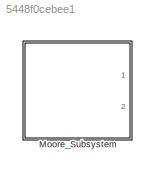
MODEL slx_5448f0cebee1
KIND model
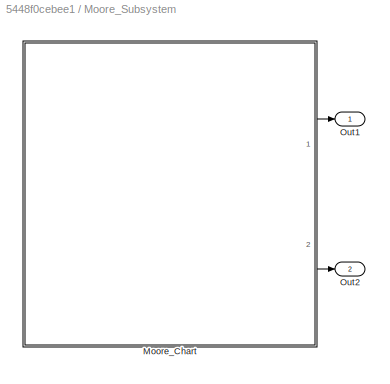
BLOCK [SubSystem] Moore_Subsystem
  Ports = [0, 2]
  RequestExecContextInheritance = off
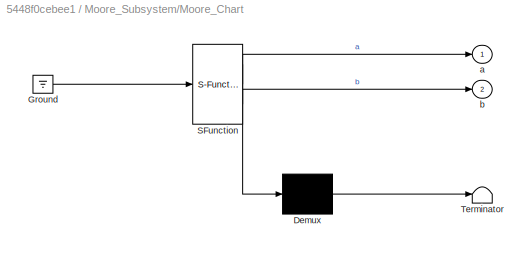
BLOCK [SubSystem] Moore_Subsystem/Moore_Chart
  ErrorFcn = Stateflow.Translate.translate
  PermitHierarchicalResolution = ExplicitOnly
  Ports = [0, 2]
  RequestExecContextInheritance = off
  SFBlockType = Chart
  TreatAsAtomicUnit = on
BLOCK [Demux] Moore_Subsystem/Moore_Chart/ Demux 
  Outputs = 1
  Ports = [1, 1]
BLOCK [Ground] Moore_Subsystem/Moore_Chart/ Ground 
BLOCK [S-Function] Moore_Subsystem/Moore_Chart/ SFunction 
  EnableBusSupport = on
  FunctionName = sf_sfun
  PortCounts = [1 3]
  Ports = [1, 3]
  Tag = Stateflow S-Function Stateflow_Moore_example 3
BLOCK [Terminator] Moore_Subsystem/Moore_Chart/ Terminator 
BLOCK [Outport] Moore_Subsystem/Moore_Chart/a
  IconDisplay = Port number
BLOCK [Outport] Moore_Subsystem/Moore_Chart/b
  IconDisplay = Port number
  Port = 2
BLOCK [Outport] Moore_Subsystem/Out1
  IconDisplay = Port number
BLOCK [Outport] Moore_Subsystem/Out2
  IconDisplay = Port number
  Port = 2
LINE Moore_Subsystem/Moore_Chart:1 -> Moore_Subsystem/Out1:1
LINE Moore_Subsystem/Moore_Chart:2 -> Moore_Subsystem/Out2:1
